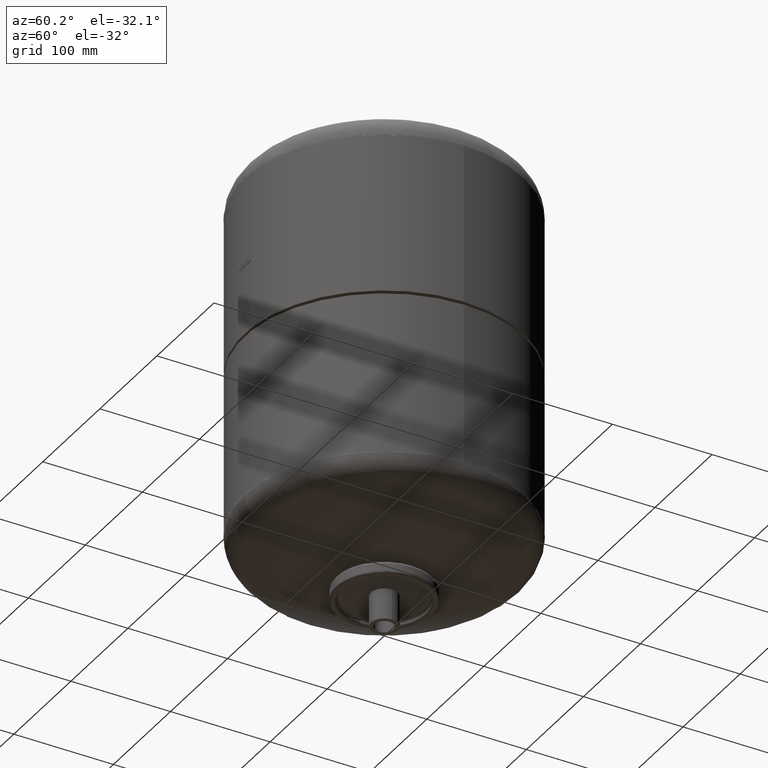
[diagram: clean part render]
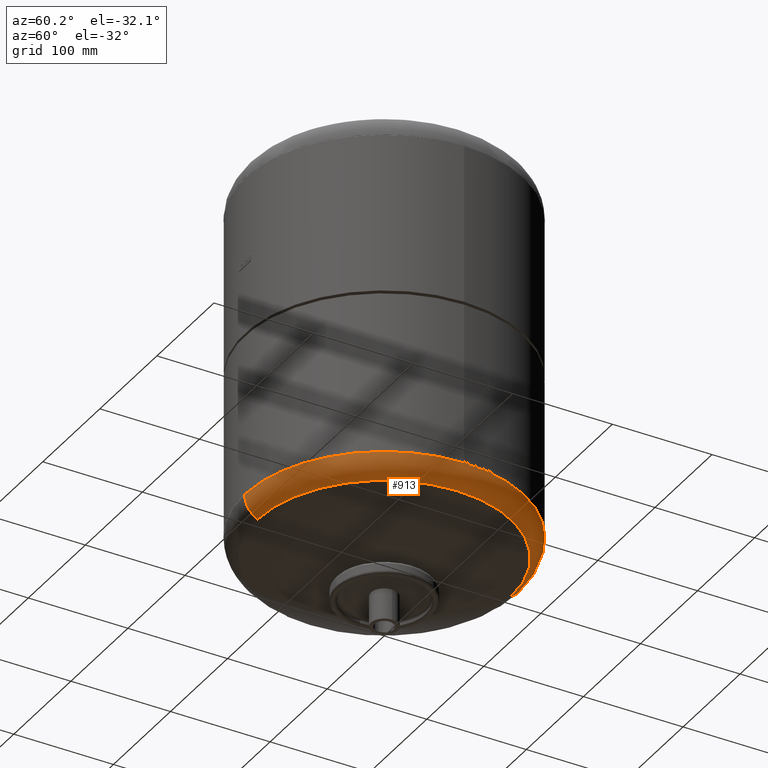
[diagram: same view with one face highlighted and labeled with its STEP entity id]
A machine part, auxiliary view. The second image highlights one B-rep face of the part: STEP entity #913.
In plain terms, the highlighted toroidal blend (fillet) surface has major radius 115 mm and minor (blend) radius 25 mm.
Its self-contained STEP definition (entity closure, byte-faithful):
#799=CARTESIAN_POINT('',(140.0,1.726252E-014,92.357457576154573));
#800=VERTEX_POINT('',#799);
#807=CARTESIAN_POINT('',(-9.759320E-015,140.0,92.357457576154616));
#808=VERTEX_POINT('',#807);
#809=CARTESIAN_POINT('',(-1.190815E-016,1.180331E-016,92.357457576154601));
#810=DIRECTION('',(0.0,0.0,1.0));
#811=DIRECTION('',(-1.0,0.0,0.0));
#812=AXIS2_PLACEMENT_3D('',#809,#810,#811);
#813=CIRCLE('',#812,140.0);
#814=EDGE_CURVE('',#800,#808,#813,.T.);
#831=CARTESIAN_POINT('',(7.385169E-015,-140.0,92.357457576154573));
#832=VERTEX_POINT('',#831);
#833=CARTESIAN_POINT('',(3.355614E-015,-127.339055793991430,70.614695513510185));
#834=VERTEX_POINT('',#833);
#835=CARTESIAN_POINT('',(7.385169E-015,-115.000000000000010,92.357457576154587));
#836=DIRECTION('',(1.0,0.0,0.0));
#837=DIRECTION('',(0.0,-1.0,0.0));
#838=AXIS2_PLACEMENT_3D('',#835,#836,#837);
#839=CIRCLE('',#838,25.0);
#840=EDGE_CURVE('',#832,#834,#839,.T.);
#850=CARTESIAN_POINT('',(-1.223841E-014,127.339055793991430,70.614695513510242));
#851=VERTEX_POINT('',#850);
#852=CARTESIAN_POINT('',(-6.697804E-015,115.000000000000010,92.357457576154644));
#853=DIRECTION('',(-1.0,0.0,0.0));
#854=DIRECTION('',(0.0,1.0,0.0));
#855=AXIS2_PLACEMENT_3D('',#852,#853,#854);
#856=CIRCLE('',#855,25.0);
#857=EDGE_CURVE('',#808,#851,#856,.T.);
#885=CARTESIAN_POINT('',(-4.148636E-015,4.112114E-015,70.614695513510213));
#886=DIRECTION('',(0.0,0.0,1.0));
#887=DIRECTION('',(-1.0,0.0,0.0));
#888=AXIS2_PLACEMENT_3D('',#885,#886,#887);
#889=CIRCLE('',#888,127.339055793991430);
#890=EDGE_CURVE('',#834,#851,#889,.T.);
#895=CARTESIAN_POINT('',(7.385169E-015,1.180331E-016,92.357457576154616));
#896=DIRECTION('',(1.853286E-016,-1.836970E-016,1.0));
#897=DIRECTION('',(0.0,-1.0,0.0));
#898=AXIS2_PLACEMENT_3D('',#895,#896,#897);
#899=TOROIDAL_SURFACE('',#898,115.000000000000010,25.0);
#900=ORIENTED_EDGE('',*,*,#840,.T.);
#901=ORIENTED_EDGE('',*,*,#890,.T.);
#902=ORIENTED_EDGE('',*,*,#857,.F.);
#903=ORIENTED_EDGE('',*,*,#814,.F.);
#904=CARTESIAN_POINT('',(-1.190815E-016,1.180331E-016,92.357457576154601));
#905=DIRECTION('',(0.0,0.0,1.0));
#906=DIRECTION('',(-1.0,0.0,0.0));
#907=AXIS2_PLACEMENT_3D('',#904,#905,#906);
#908=CIRCLE('',#907,140.0);
#909=EDGE_CURVE('',#832,#800,#908,.T.);
#910=ORIENTED_EDGE('',*,*,#909,.F.);
#911=EDGE_LOOP('',(#900,#901,#902,#903,#910));
#912=FACE_OUTER_BOUND('',#911,.T.);
#913=ADVANCED_FACE('',(#912),#899,.T.);